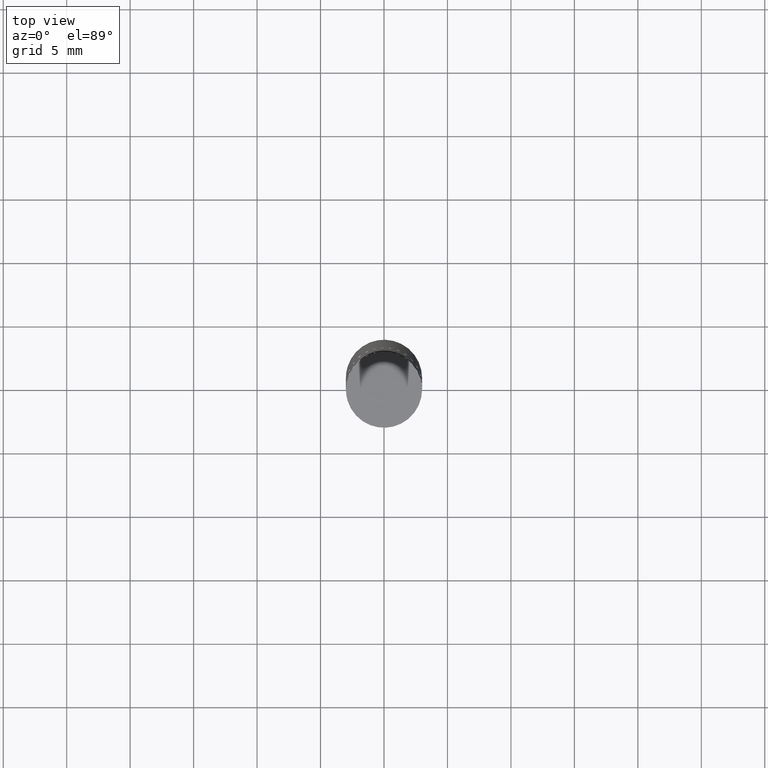
[diagram: clean part render]
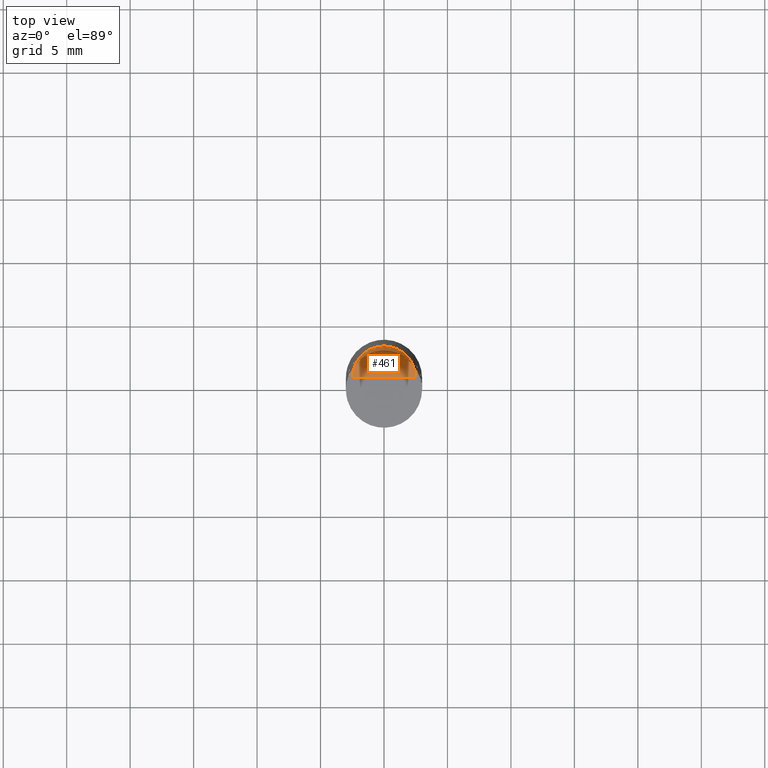
[diagram: same view with one face highlighted and labeled with its STEP entity id]
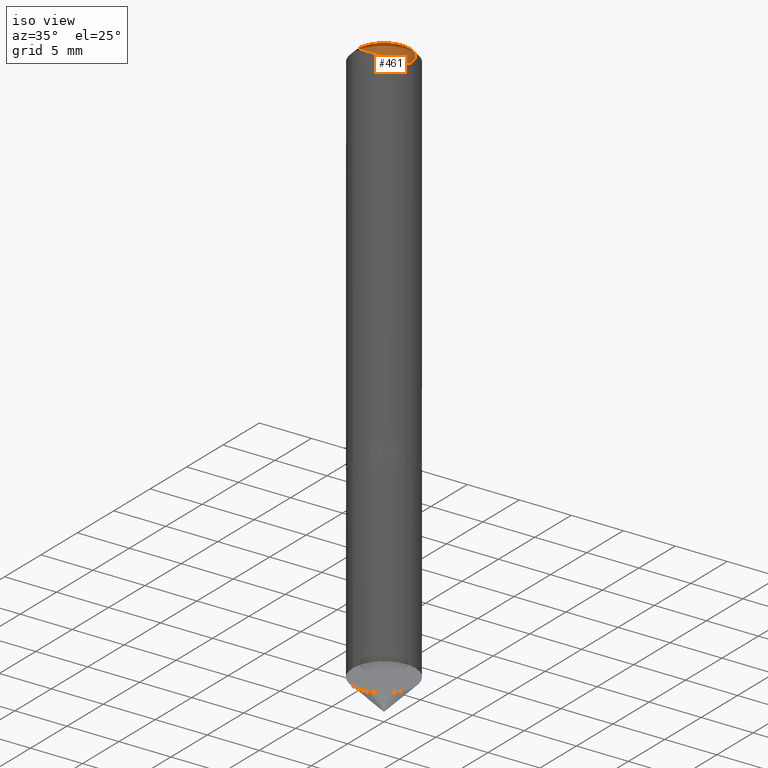
[diagram: same view with one face highlighted and labeled with its STEP entity id]
A machine part, top view. The second image highlights one B-rep face of the part: STEP entity #461.
A second angle (iso view) of the same face is appended — the face is thin or edge-on in the first view.
In plain terms, the highlighted face is a freeform B-spline surface patch.
Its self-contained STEP definition (entity closure, byte-faithful):
#280=CARTESIAN_POINT('',(2.5,0.0,36.0));
#281=CARTESIAN_POINT('',(2.5,2.5,36.0));
#282=CARTESIAN_POINT('',(0.0,2.5,36.0));
#283=CARTESIAN_POINT('',(-2.5,2.5,36.0));
#284=CARTESIAN_POINT('',(-2.5,0.0,36.0));
#285=CARTESIAN_POINT('',(0.0,0.0,36.0));
#446=(
BOUNDED_SURFACE()
B_SPLINE_SURFACE(1,2,(
(#280,#281,#282,#283,#284),
(#285,#285,#285,#285,#285)
), .UNSPECIFIED.,.F.,.F.,.F.)
B_SPLINE_SURFACE_WITH_KNOTS((2,2),(3,2,3),(
0.0,1.0),(
0.0,0.5,1.0), .UNSPECIFIED.)
GEOMETRIC_REPRESENTATION_ITEM()
RATIONAL_B_SPLINE_SURFACE(((1.0,0.707106781187,1.0,0.707106781187,1.0),
(1.0,0.707106781187,1.0,0.707106781187,1.0)
))
REPRESENTATION_ITEM('')
SURFACE()
);
#447=(
BOUNDED_CURVE()
B_SPLINE_CURVE(1,(#285,#280),.UNSPECIFIED.,.F.,.F.)
B_SPLINE_CURVE_WITH_KNOTS((2,2),
(0.0,1.0),.UNSPECIFIED.)
CURVE()
GEOMETRIC_REPRESENTATION_ITEM()
RATIONAL_B_SPLINE_CURVE((1.0,1.0))
REPRESENTATION_ITEM('')
);
#448=(
BOUNDED_CURVE()
B_SPLINE_CURVE(2,(#280,#281,#282,#283,#284),.UNSPECIFIED.,.F.,.F.)
B_SPLINE_CURVE_WITH_KNOTS((3,2,3),
(0.0,0.5,1.0),.UNSPECIFIED.)
CURVE()
GEOMETRIC_REPRESENTATION_ITEM()
RATIONAL_B_SPLINE_CURVE((1.0,0.707106781187,1.0,0.707106781187,1.0))
REPRESENTATION_ITEM('')
);
#449=(
BOUNDED_CURVE()
B_SPLINE_CURVE(1,(#284,#285),.UNSPECIFIED.,.F.,.F.)
B_SPLINE_CURVE_WITH_KNOTS((2,2),
(0.0,1.0),.UNSPECIFIED.)
CURVE()
GEOMETRIC_REPRESENTATION_ITEM()
RATIONAL_B_SPLINE_CURVE((1.0,1.0))
REPRESENTATION_ITEM('')
);
#450=VERTEX_POINT('',#280);
#451=VERTEX_POINT('',#284);
#452=VERTEX_POINT('',#285);
#453=EDGE_CURVE('',#452,#450,#447,.T.);
#454=EDGE_CURVE('',#450,#451,#448,.T.);
#455=EDGE_CURVE('',#451,#452,#449,.T.);
#456=ORIENTED_EDGE('',*,*,#453,.T.);
#457=ORIENTED_EDGE('',*,*,#454,.T.);
#458=ORIENTED_EDGE('',*,*,#455,.T.);
#459=EDGE_LOOP('',(#456,#457,#458));
#460=FACE_OUTER_BOUND('',#459,.T.);
#461=ADVANCED_FACE('',(#460),#446,.T.);